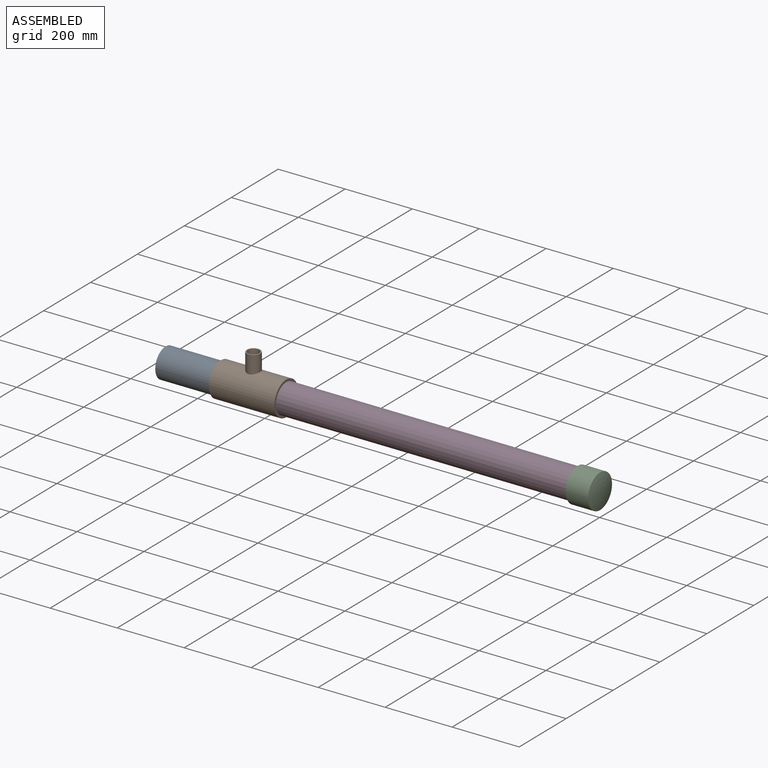
[diagram: assembled view]
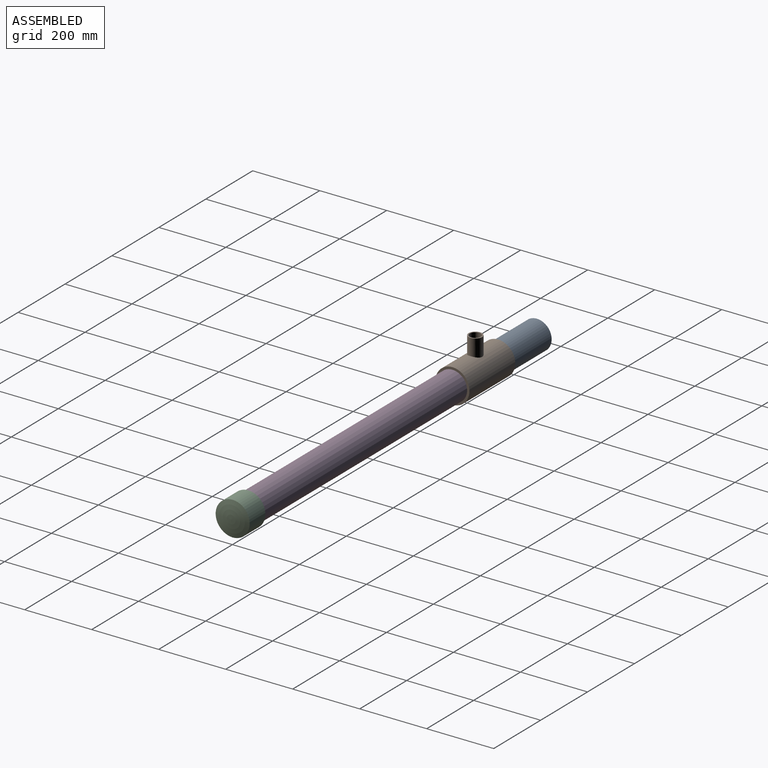
[diagram: assembled view, second angle]
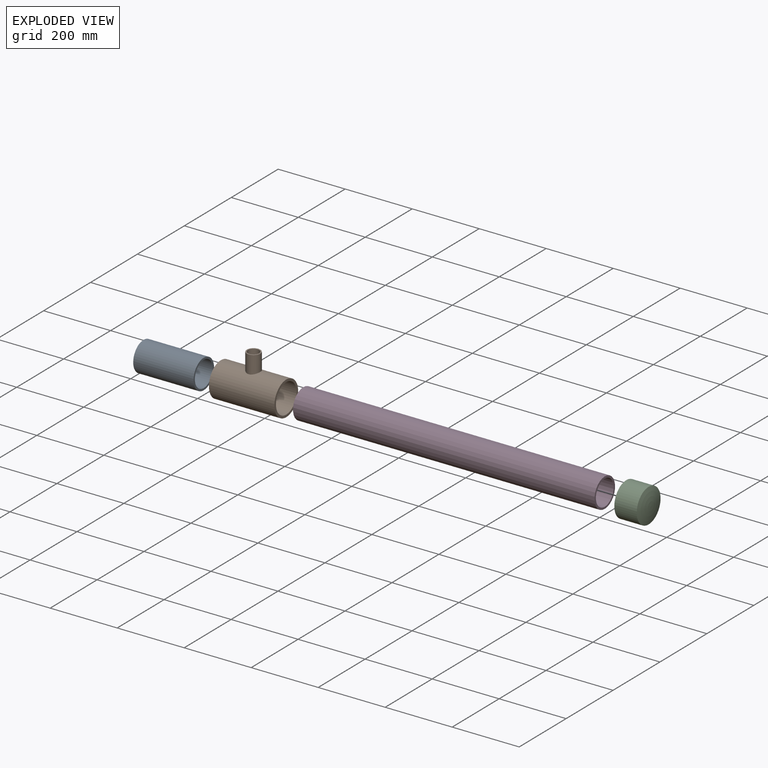
[diagram: exploded view]
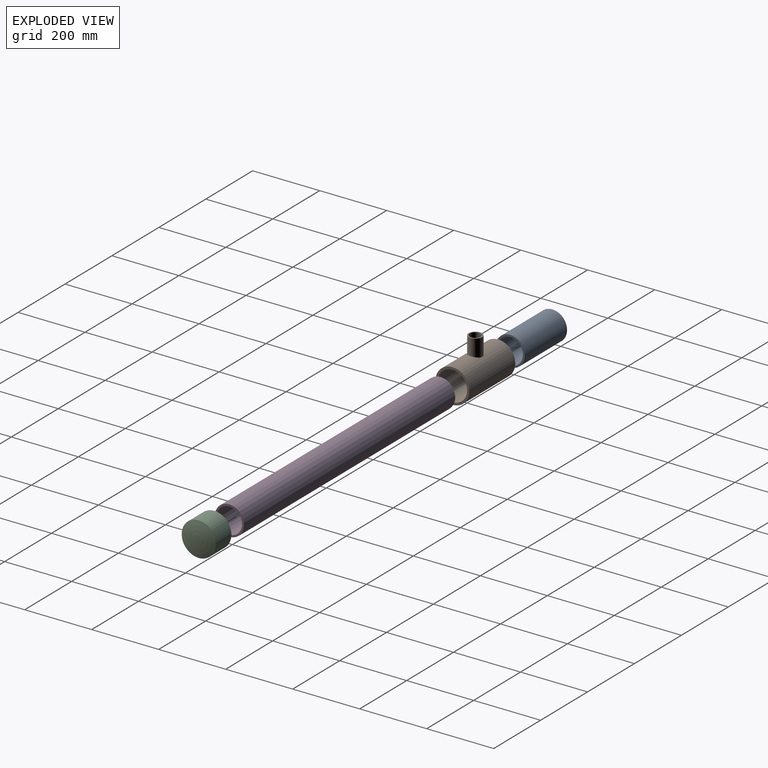
[diagram: exploded view, second angle]
ASSEMBLY  parts=4 mates=3
PART A: 4 faces, bbox 180x87.8x87.8 mm
  f0: cylinder r=38.1mm len=180mm, axis (-1,0,0), area 43090.1mm2, adj f2,f3
  f1: cylinder r=43.88mm len=180mm, axis (-1,0,0), area 49621.5mm2, adj f2,f3
  f2: plane 87.75x87.75mm, normal (1,0,0), area 1487.2mm2, adj f0,f1
  f3: plane 87.75x87.75mm, normal (-1,0,0), area 1487.2mm2, adj f0,f1
PART B: 7 faces, bbox 195.3x101.6x150.8 mm
  f0: cylinder r=43.88mm len=195.26mm, axis (-1,0,0), area 52936.7mm2, adj f1,f2,f4
  f1: plane 101.6x101.6mm, normal (-1,0,0), area 2059.7mm2, adj f0,f3
  f2: plane 101.6x101.6mm, normal (1,0,0), area 2059.7mm2, adj f0,f3
  f3: cylinder r=50.8mm len=195.26mm, axis (-1,0,0), area 61012mm2, adj f1,f2,f6
  f4: cylinder r=16.7mm len=59.43mm, axis (0,0,-1), area 6061.2mm2, adj f0,f5
  f5: plane 40.48x40.48mm, normal (0,0,1), area 410.8mm2, adj f4,f6
  f6: cylinder r=20.24mm len=53.41mm, axis (0,0,-1), area 6521.1mm2, adj f3,f5
PART C: 5 faces, bbox 73.8x101.6x101.6 mm
  f0: cylinder r=50.8mm len=101.6mm, axis (-1,0,0), area 21351.9mm2, adj f1,f4
  f1: plane 101.6x101.6mm, normal (-1,0,0), area 2059.7mm2, adj f0,f2
  f2: cylinder r=43.88mm len=87.75mm, axis (-1,0,0), area 16532.2mm2, adj f1,f3
  f3: revolved ~87.75x87.75mm, area 6185.9mm2, adj f2
  f4: sphere r=189.79mm, area 8258mm2, adj f0
PART D: 4 faces, bbox 900x87.8x87.8 mm
  f0: cylinder r=38.1mm len=900mm, axis (-1,0,0), area 215450.4mm2, adj f2,f3
  f1: cylinder r=43.88mm len=900mm, axis (-1,0,0), area 248107.3mm2, adj f2,f3
  f2: plane 87.75x87.75mm, normal (1,0,0), area 1487.2mm2, adj f0,f1
  f3: plane 87.75x87.75mm, normal (-1,0,0), area 1487.2mm2, adj f0,f1
PLACE A t=(-96.62,1.18,7.51)mm
PLACE B t=(166.01,1.18,7.51)mm
PLACE C t=(1133.64,1.18,7.51)mm
PLACE D t=(248.64,1.18,7.51)mm
MATE planar D.f0 <-> B.f0  axis (-1,0,0) through (248.64,1.18,7.51)mm
MATE planar C.f0 <-> D.f0  axis (-1,0,0) through (1133.64,1.18,7.51)mm
MATE planar B.f0 <-> A.f0  axis (-1,0,0) through (68.38,1.18,7.51)mm
